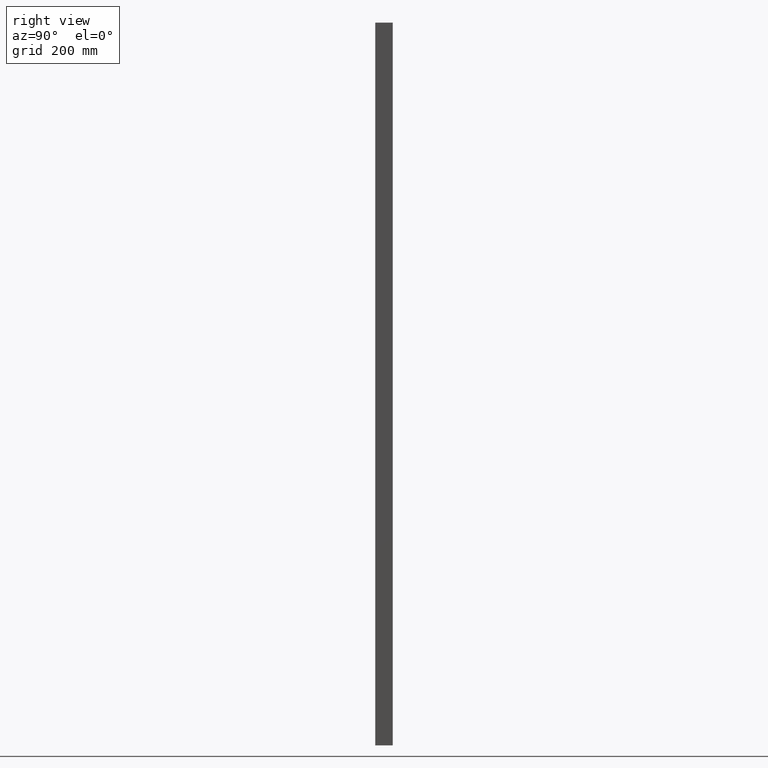
[diagram: clean part render]
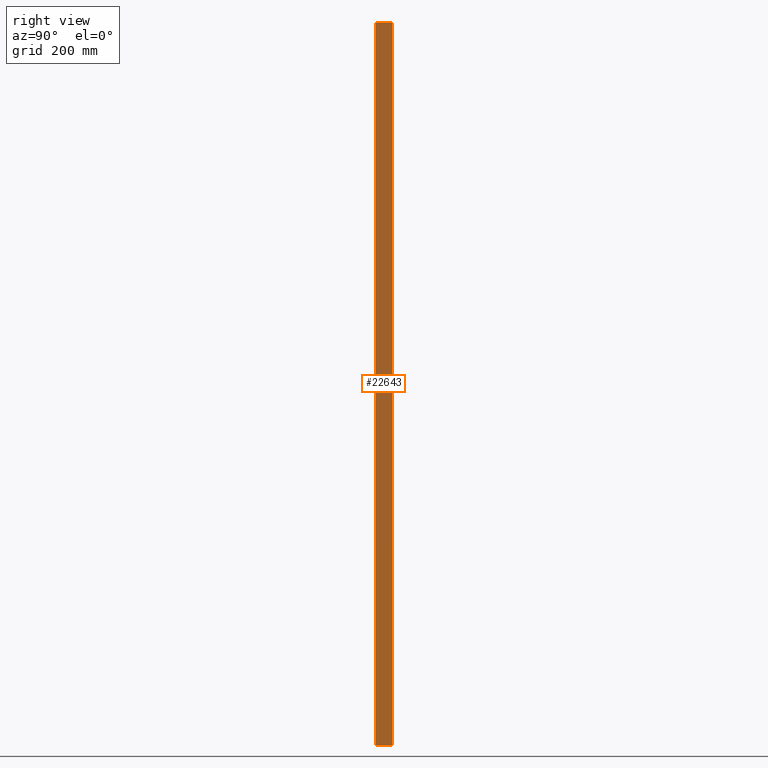
[diagram: same view with one face highlighted and labeled with its STEP entity id]
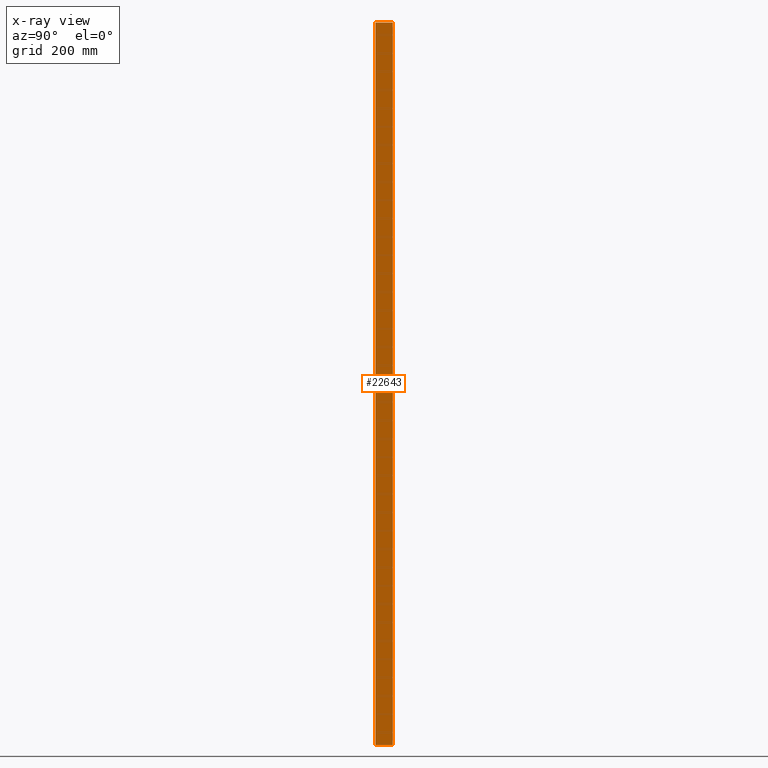
[diagram: x-ray of the same camera — body ghosted, the highlighted face saturated]
A machine part, right view. The second image highlights one B-rep face of the part: STEP entity #22643.
The next image is the same camera in x-ray: the body ghosted, the highlighted face saturated — about 0% of this face is hidden behind the body in this view.
In plain terms, the highlighted planar face has unit normal (1, -0, -0).
Its self-contained STEP definition (entity closure, byte-faithful):
#2047 = EDGE_CURVE ( 'NONE', #16864, #29913, #20922, .T. ) ;
#3795 = CARTESIAN_POINT ( 'NONE',  ( 189.9999999999999400, 15.00000000000000000, -1240.000000000000000 ) ) ;
#6501 = VERTEX_POINT ( 'NONE', #38176 ) ;
#6893 = VECTOR ( 'NONE', #20738, 1000.000000000000000 ) ;
#7916 = FACE_OUTER_BOUND ( 'NONE', #23239, .T. ) ;
#8343 = CARTESIAN_POINT ( 'NONE',  ( 189.9999999999999700, 14.99999999999995900, -1240.000000000000000 ) ) ;
#12262 = VECTOR ( 'NONE', #30954, 1000.000000000000000 ) ;
#13258 = LINE ( 'NONE', #15293, #29558 ) ;
#15293 = CARTESIAN_POINT ( 'NONE',  ( 189.9999999999998900, -15.00000000000000000, -1240.000000000000000 ) ) ;
#16220 = LINE ( 'NONE', #28089, #35093 ) ;
#16268 = ORIENTED_EDGE ( 'NONE', *, *, #32350, .T. ) ;
#16864 = VERTEX_POINT ( 'NONE', #35927 ) ;
#17650 = EDGE_CURVE ( 'NONE', #29913, #6501, #29763, .T. ) ;
#17852 = ORIENTED_EDGE ( 'NONE', *, *, #19537, .F. ) ;
#18006 = DIRECTION ( 'NONE',  ( 1.000000000000000000, -3.061616997868383100E-016, -4.476705744456277300E-017 ) ) ;
#18108 = CARTESIAN_POINT ( 'NONE',  ( 189.9999999999999400, -15.00000000000000000, -1.110223024625156500E-013 ) ) ;
#19537 = EDGE_CURVE ( 'NONE', #16864, #23241, #13258, .T. ) ;
#20738 = DIRECTION ( 'NONE',  ( 4.476705744456277900E-017, 0.0000000000000000000, 1.000000000000000000 ) ) ;
#20922 = LINE ( 'NONE', #8343, #12262 ) ;
#21282 = DIRECTION ( 'NONE',  ( 3.061616997868383100E-016, 1.000000000000000000, 0.0000000000000000000 ) ) ;
#22643 = ADVANCED_FACE ( 'NONE', ( #7916 ), #24395, .T. ) ;
#23239 = EDGE_LOOP ( 'NONE', ( #41718, #16268, #17852, #42057 ) ) ;
#23241 = VERTEX_POINT ( 'NONE', #18108 ) ;
#24395 = PLANE ( 'NONE',  #25409 ) ;
#25409 = AXIS2_PLACEMENT_3D ( 'NONE', #34526, #18006, #21282 ) ;
#27278 = CARTESIAN_POINT ( 'NONE',  ( 189.9999999999999400, 15.00000000000000000, -1240.000000000000000 ) ) ;
#28089 = CARTESIAN_POINT ( 'NONE',  ( 190.0000000000000300, 14.99999999999957900, 0.0000000000000000000 ) ) ;
#29558 = VECTOR ( 'NONE', #41341, 1000.000000000000000 ) ;
#29763 = LINE ( 'NONE', #27278, #6893 ) ;
#29913 = VERTEX_POINT ( 'NONE', #3795 ) ;
#30954 = DIRECTION ( 'NONE',  ( 3.061616997868382600E-016, 1.000000000000000000, -3.061616997868382600E-016 ) ) ;
#31537 = DIRECTION ( 'NONE',  ( -3.061616997868383100E-016, -1.000000000000000000, -3.061616997868384600E-016 ) ) ;
#32350 = EDGE_CURVE ( 'NONE', #6501, #23241, #16220, .T. ) ;
#34526 = CARTESIAN_POINT ( 'NONE',  ( 189.9999999999999700, 14.99999999999995900, -1240.000000000000000 ) ) ;
#35093 = VECTOR ( 'NONE', #31537, 1000.000000000000000 ) ;
#35927 = CARTESIAN_POINT ( 'NONE',  ( 189.9999999999998900, -15.00000000000000000, -1240.000000000000000 ) ) ;
#38176 = CARTESIAN_POINT ( 'NONE',  ( 189.9999999999999700, 15.00000000000000000, -2.220446049250313100E-013 ) ) ;
#41341 = DIRECTION ( 'NONE',  ( 4.476705744456277900E-017, 0.0000000000000000000, 1.000000000000000000 ) ) ;
#41718 = ORIENTED_EDGE ( 'NONE', *, *, #17650, .T. ) ;
#42057 = ORIENTED_EDGE ( 'NONE', *, *, #2047, .T. ) ;